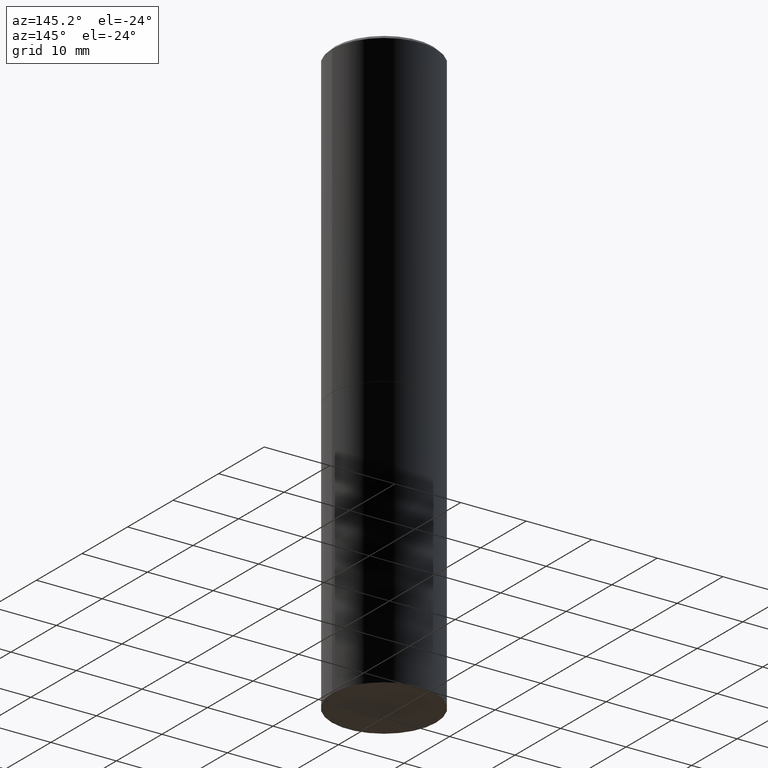
[diagram: clean part render]
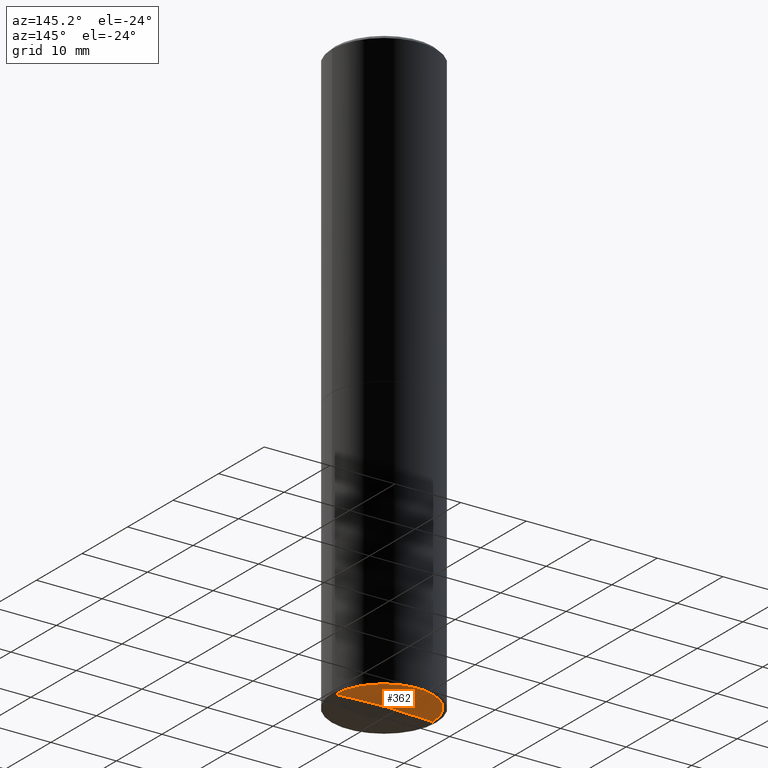
[diagram: same view with one face highlighted and labeled with its STEP entity id]
A machine part, auxiliary view. The second image highlights one B-rep face of the part: STEP entity #362.
In plain terms, the highlighted conical surface has half-angle 88 deg.
Its self-contained STEP definition (entity closure, byte-faithful):
#19 = CARTESIAN_POINT ( 'NONE',  ( -0.2925000000000000377, -1.017705870880701826E-14, -3.499825462644184704 ) ) ;
#25 = CARTESIAN_POINT ( 'NONE',  ( -0.2925000000000000377, -1.017705870880701826E-14, -3.499825462644184704 ) ) ;
#32 = VERTEX_POINT ( 'NONE', #180 ) ;
#41 = CARTESIAN_POINT ( 'NONE',  ( 8.558713995988817956E-29, -1.221957529203025001E-14, -3.499825462644184704 ) ) ;
#48 = CARTESIAN_POINT ( 'NONE',  ( 0.2925000000000000377, -1.422627095637842375E-14, -3.499825462644184704 ) ) ;
#57 = VERTEX_POINT ( 'NONE', #217 ) ;
#81 = VECTOR ( 'NONE', #264, 39.37007874015747433 ) ;
#89 = EDGE_CURVE ( 'NONE', #32, #191, #297, .T. ) ;
#113 = AXIS2_PLACEMENT_3D ( 'NONE', #41, #150, #201 ) ;
#115 = ORIENTED_EDGE ( 'NONE', *, *, #89, .F. ) ;
#132 = ORIENTED_EDGE ( 'NONE', *, *, #357, .T. ) ;
#133 = FACE_OUTER_BOUND ( 'NONE', #292, .T. ) ;
#150 = DIRECTION ( 'NONE',  ( -2.445468806185136597E-29, 3.491481338843145583E-15, 1.000000000000000000 ) ) ;
#163 = LINE ( 'NONE', #25, #81 ) ;
#180 = CARTESIAN_POINT ( 'NONE',  ( 0.2925000000000000377, -1.422627095637842375E-14, -3.499825462644184704 ) ) ;
#191 = VERTEX_POINT ( 'NONE', #19 ) ;
#201 = DIRECTION ( 'NONE',  ( 1.000000000000000000, -6.982962677686264344E-15, 0.000000000000000000 ) ) ;
#217 = CARTESIAN_POINT ( 'NONE',  ( 8.536401521773362796E-29, -1.218009381723747733E-14, -3.489611137567848242 ) ) ;
#231 = CARTESIAN_POINT ( 'NONE',  ( 8.558713995988817956E-29, -1.221957529203025001E-14, -3.499825462644184704 ) ) ;
#252 = AXIS2_PLACEMENT_3D ( 'NONE', #231, #397, #438 ) ;
#264 = DIRECTION ( 'NONE',  ( -0.9993908270190957621, 6.856857904024552526E-15, -0.03489949670250219738 ) ) ;
#292 = EDGE_LOOP ( 'NONE', ( #375, #132, #115 ) ) ;
#297 = CIRCLE ( 'NONE', #113, 0.2925000000000000377 ) ;
#300 = EDGE_CURVE ( 'NONE', #57, #32, #351, .T. ) ;
#351 = LINE ( 'NONE', #48, #408 ) ;
#357 = EDGE_CURVE ( 'NONE', #57, #191, #163, .T. ) ;
#362 = ADVANCED_FACE ( 'NONE', ( #133 ), #419, .F. ) ;
#375 = ORIENTED_EDGE ( 'NONE', *, *, #300, .F. ) ;
#397 = DIRECTION ( 'NONE',  ( 2.445468806185136597E-29, -3.491481338843145583E-15, -1.000000000000000000 ) ) ;
#408 = VECTOR ( 'NONE', #435, 39.37007874015747433 ) ;
#419 = CONICAL_SURFACE ( 'NONE', #252, 0.2925000000000000377, 1.535889741755008808 ) ;
#435 = DIRECTION ( 'NONE',  ( 0.9993908270190957621, -6.978169709227547010E-15, -0.03489949670250219738 ) ) ;
#438 = DIRECTION ( 'NONE',  ( -1.000000000000000000, 6.982962677686264344E-15, 0.000000000000000000 ) ) ;